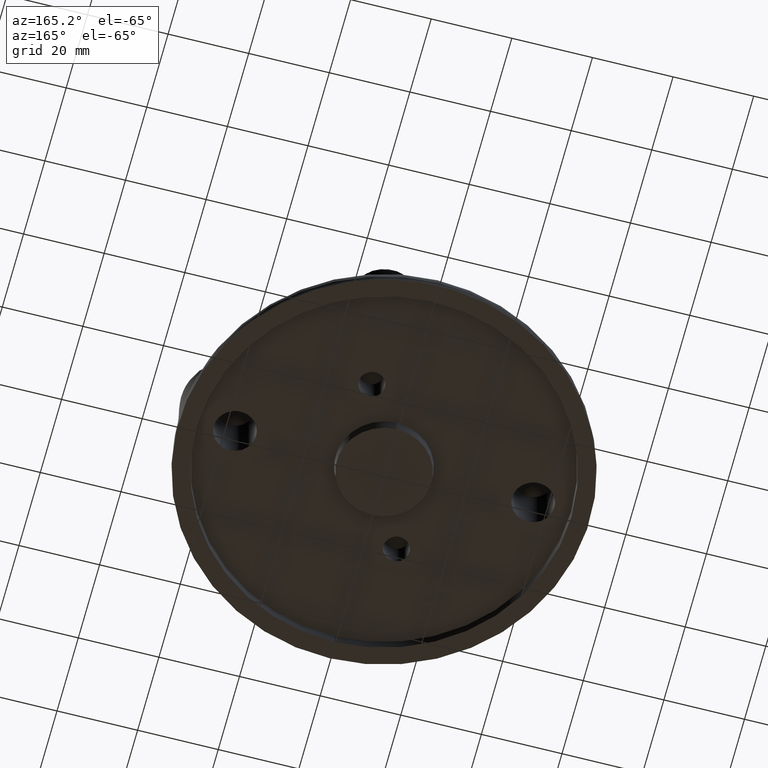
[diagram: clean part render]
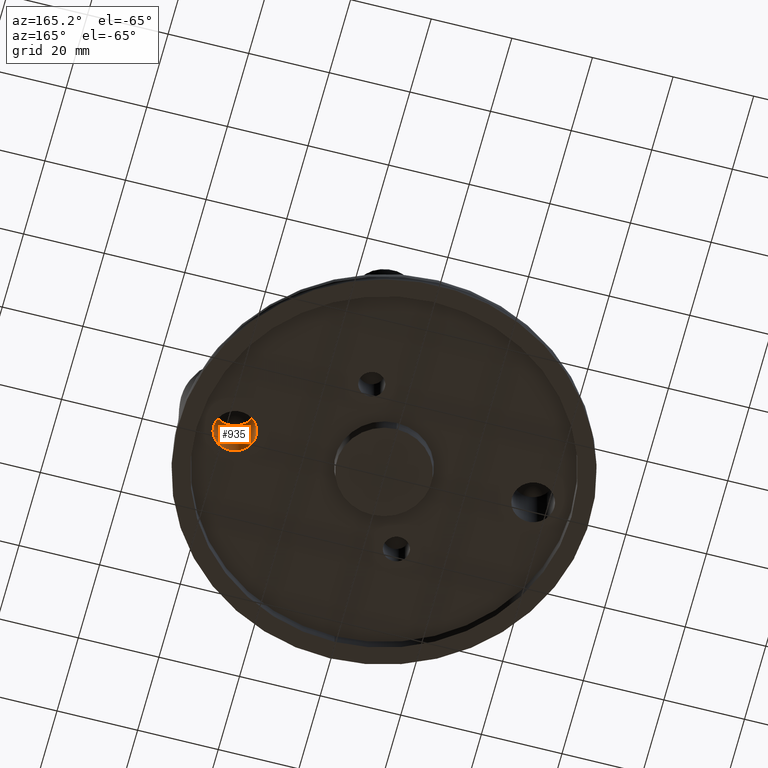
[diagram: same view with one face highlighted and labeled with its STEP entity id]
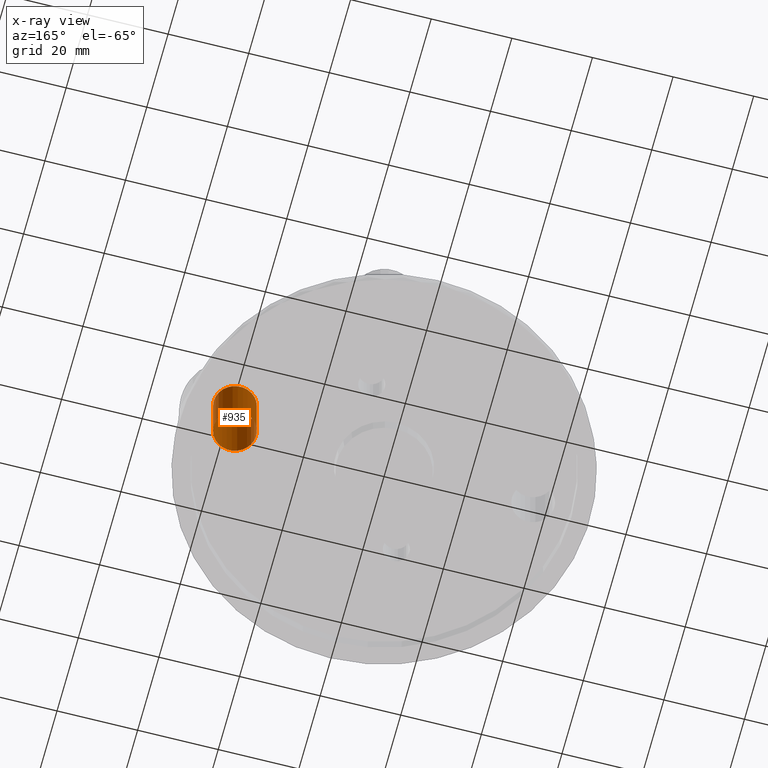
[diagram: x-ray of the same camera — body ghosted, the highlighted face saturated]
A machine part, auxiliary view. The second image highlights one B-rep face of the part: STEP entity #935.
The next image is the same camera in x-ray: the body ghosted, the highlighted face saturated — about 0% of this face is hidden behind the body in this view.
In plain terms, the highlighted cylindrical surface (bore or boss wall) has radius 5.25 mm, axis along (0, 0, -1).
Its self-contained STEP definition (entity closure, byte-faithful):
#88=CYLINDRICAL_SURFACE('',#1055,5.25);
#102=LINE('',#5360,#124);
#124=VECTOR('',#1263,5.25);
#186=FACE_OUTER_BOUND('',#253,.T.);
#253=EDGE_LOOP('',(#739,#740,#741,#742));
#273=CIRCLE('',#980,5.25);
#325=CIRCLE('',#1056,5.25);
#347=VERTEX_POINT('',#1357);
#403=VERTEX_POINT('',#5358);
#428=EDGE_CURVE('',#347,#347,#273,.F.);
#520=EDGE_CURVE('',#403,#403,#325,.T.);
#521=EDGE_CURVE('',#403,#347,#102,.T.);
#739=ORIENTED_EDGE('',*,*,#520,.T.);
#740=ORIENTED_EDGE('',*,*,#521,.T.);
#741=ORIENTED_EDGE('',*,*,#428,.T.);
#742=ORIENTED_EDGE('',*,*,#521,.F.);
#935=ADVANCED_FACE('',(#186),#88,.F.);
#980=AXIS2_PLACEMENT_3D('',#1358,#1101,#1102);
#1055=AXIS2_PLACEMENT_3D('',#5357,#1259,#1260);
#1056=AXIS2_PLACEMENT_3D('',#5359,#1261,#1262);
#1101=DIRECTION('center_axis',(0.,1.171453E-15,1.));
#1102=DIRECTION('ref_axis',(0.,-1.,1.171453E-15));
#1259=DIRECTION('center_axis',(0.,0.,-1.));
#1260=DIRECTION('ref_axis',(-1.,0.,0.));
#1261=DIRECTION('center_axis',(0.,0.,1.));
#1262=DIRECTION('ref_axis',(1.,0.,0.));
#1263=DIRECTION('',(0.,0.,-1.));
#1357=CARTESIAN_POINT('',(42.25,-6.42939569552361E-16,3.00000000000004));
#1358=CARTESIAN_POINT('Origin',(37.,3.51436E-15,3.00000000000004));
#5357=CARTESIAN_POINT('Origin',(37.,0.,17.2000000000001));
#5358=CARTESIAN_POINT('',(42.25,0.,17.2000000000001));
#5359=CARTESIAN_POINT('Origin',(37.,0.,17.2000000000001));
#5360=CARTESIAN_POINT('',(42.25,-6.42939569552361E-16,17.2000000000001));